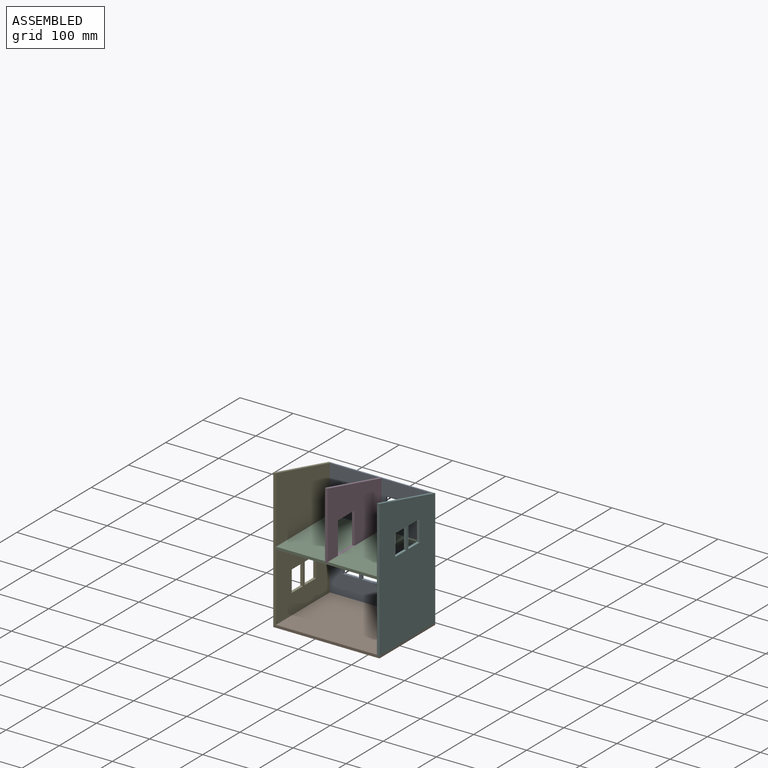
[diagram: assembled view]
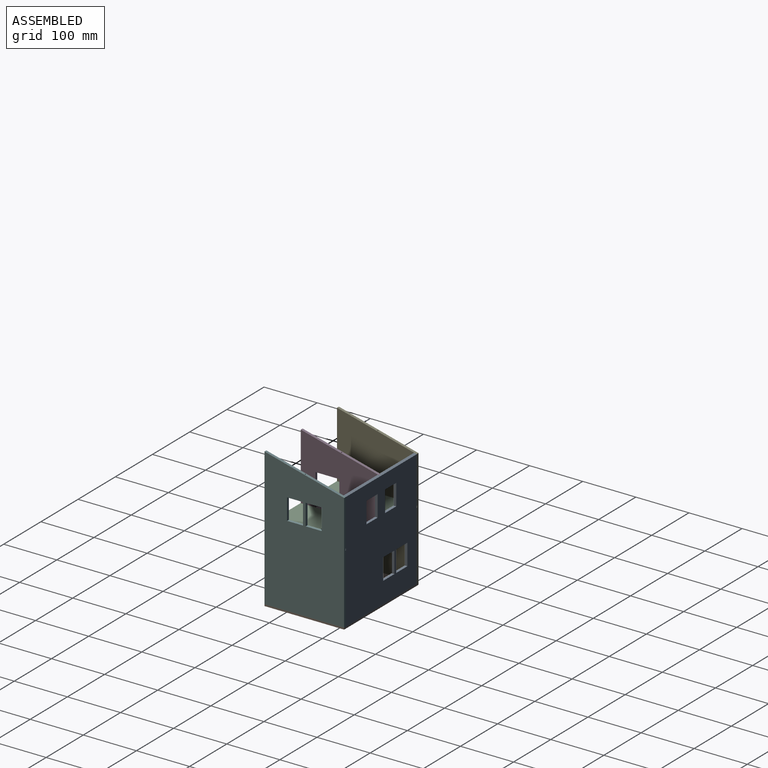
[diagram: assembled view, second angle]
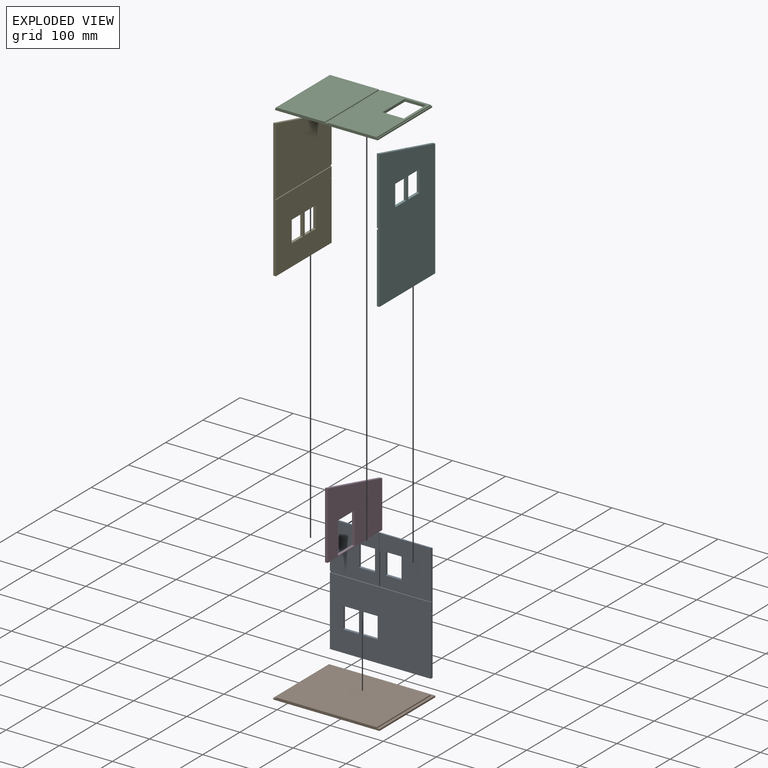
[diagram: exploded view]
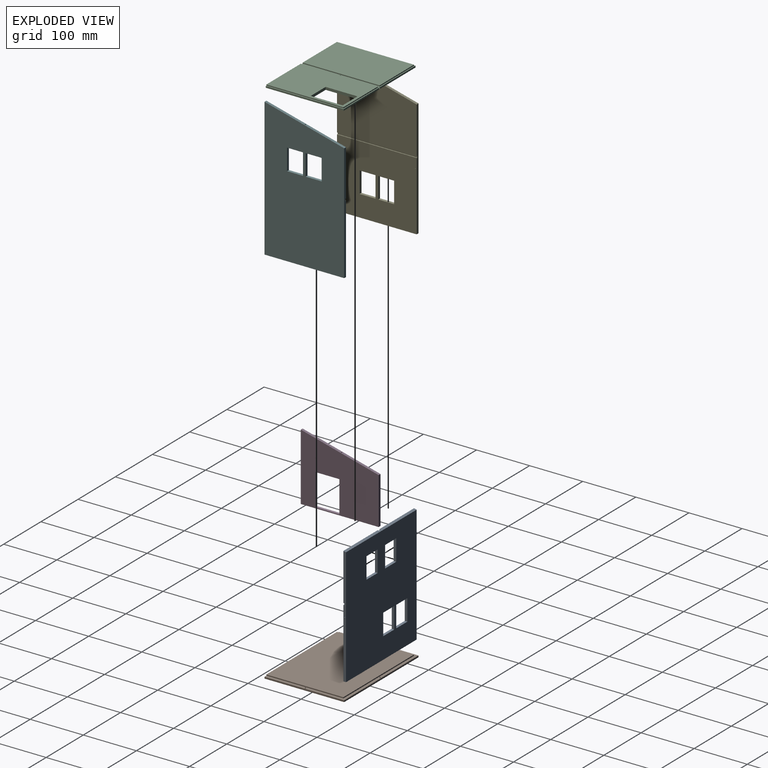
[diagram: exploded view, second angle]
ASSEMBLY  parts=6 mates=5
PART A: 38 faces, bbox 190x5x222.1 mm
  f0: plane 92.45x88.8mm, normal (0,-1,0), area 7009.6mm2, adj f7,f10,f16,f32,f33,f34,f35,f37
  f1: plane 92.45x1.7mm, normal (0,0,-1), area 157.2mm2, adj f2,f5,f17,f36
  f2: plane 92.45x88.8mm, normal (0,-1,0), area 7009.6mm2, adj f1,f5,f10,f20,f21,f22,f23,f36
  f3: plane 190x130mm, normal (0,-1,0), area 22300mm2, adj f5,f6,f7,f15,f24,f25,f26,f27
  f4: plane 220.97x190mm, normal (0,1,0), area 37184.3mm2, adj f5,f6,f7,f10,f20,f21,f22,f23
  f5: plane 222.1x5mm, normal (-1,0,0), area 1097.9mm2, adj f1,f2,f3,f4,f6,f10,f11,f15
  f6: plane 190x5mm, normal (0,0,-1), area 946.5mm2, adj f3,f4,f5,f7,f8
  f7: plane 222.1x5mm, normal (1,0,0), area 1097.9mm2, adj f0,f3,f4,f6,f10,f13,f15,f16
  f8: cylinder r=1.05mm len=2.1mm, axis (0,0,-1), area 13.2mm2, adj f6,f9
  f9: plane 2.1x2.1mm, normal (0,0,-1), area 3.5mm2, adj f8
  f10: plane 190x5mm, normal (0,0.22,0.98), area 965.1mm2, adj f0,f2,f4,f5,f7,f17,f36,f37
  f11: cylinder r=1.15mm len=2.3mm, axis (-1,0,0), area 14.5mm2, adj f5,f12
  f12: plane 2.3x2.3mm, normal (-1,0,0), area 4.2mm2, adj f11
  f13: cylinder r=1.15mm len=2.3mm, axis (1,0,0), area 14.5mm2, adj f7,f14
  f14: plane 2.3x2.3mm, normal (1,0,0), area 4.2mm2, adj f13
  f15: plane 190x1.7mm, normal (0,0,1), area 323mm2, adj f3,f5,f7,f17
  f16: plane 92.45x1.7mm, normal (0,0,-1), area 157.2mm2, adj f0,f7,f17,f37
  f17: plane 190x91.72mm, normal (0,-1,0), area 1074.8mm2, adj f1,f5,f7,f10,f15,f16,f18,f36
  f18: cylinder r=1mm len=2mm, axis (0,1,0), area 6.3mm2, adj f17,f19
  f19: plane 2x2mm, normal (0,-1,0), area 3.1mm2, adj f18
  f20: plane 30x5mm, normal (0,0,-1), area 150mm2, adj f2,f4,f21,f23
  f21: plane 40x5mm, normal (1,0,0), area 200mm2, adj f2,f4,f20,f22
  f22: plane 30x5mm, normal (0,0,1), area 150mm2, adj f2,f4,f21,f23
  f23: plane 40x5mm, normal (-1,0,0), area 200mm2, adj f2,f4,f20,f22
  f24: plane 30x5mm, normal (0,0,-1), area 150mm2, adj f3,f4,f25,f27
  f25: plane 40x5mm, normal (1,0,0), area 200mm2, adj f3,f4,f24,f26
  f26: plane 30x5mm, normal (0,0,1), area 150mm2, adj f3,f4,f25,f27
  f27: plane 40x5mm, normal (-1,0,0), area 200mm2, adj f3,f4,f24,f26
  f28: plane 30x5mm, normal (0,0,-1), area 150mm2, adj f3,f4,f29,f31
  f29: plane 40x5mm, normal (1,0,0), area 200mm2, adj f3,f4,f28,f30
  f30: plane 30x5mm, normal (0,0,1), area 150mm2, adj f3,f4,f29,f31
  f31: plane 40x5mm, normal (-1,0,0), area 200mm2, adj f3,f4,f28,f30
  f32: plane 30x5mm, normal (0,0,-1), area 150mm2, adj f0,f4,f33,f35
  f33: plane 40x5mm, normal (1,0,0), area 200mm2, adj f0,f4,f32,f34
  f34: plane 30x5mm, normal (0,0,1), area 150mm2, adj f0,f4,f33,f35
  f35: plane 40x5mm, normal (-1,0,0), area 200mm2, adj f0,f4,f32,f34
  f36: plane 88.8x1.7mm, normal (1,0,0), area 150.6mm2, adj f1,f2,f10,f17
  f37: plane 88.8x1.7mm, normal (-1,0,0), area 150.6mm2, adj f0,f10,f16,f17
PART B: 16 faces, bbox 200x150x5 mm
  f0: plane 200x3mm, normal (0,1,0), area 600mm2, adj f1,f2,f5,f9
  f1: plane 150x3mm, normal (-1,0,0), area 450mm2, adj f0,f3,f5,f9
  f2: plane 150x3mm, normal (1,0,0), area 450mm2, adj f0,f3,f5,f9
  f3: plane 200x5mm, normal (0,-1,0), area 979.6mm2, adj f1,f2,f4,f5,f6,f8,f9
  f4: plane 189.8x144.9mm, normal (0,0,1), area 27502mm2, adj f3,f6,f7,f8
  f5: plane 200x150mm, normal (0,0,-1), area 30000mm2, adj f0,f1,f2,f3
  f6: plane 144.9x2mm, normal (-1,0,0), area 289.8mm2, adj f3,f4,f7,f9
  f7: plane 189.8x2mm, normal (0,1,0), area 379.6mm2, adj f4,f6,f8,f9
  f8: plane 144.9x2mm, normal (1,0,0), area 289.8mm2, adj f3,f4,f7,f9
  f9: plane 200x150mm, normal (0,0,1), area 2488.6mm2, adj f0,f1,f2,f3,f6,f7,f8,f10
  f10: cylinder r=1mm len=2mm, axis (0,0,-1), area 6.3mm2, adj f9,f11
  f11: plane 2x2mm, normal (0,0,1), area 3.1mm2, adj f10
  f12: cylinder r=1mm len=2mm, axis (0,0,-1), area 6.3mm2, adj f9,f13
  f13: plane 2x2mm, normal (0,0,1), area 3.1mm2, adj f12
  f14: cylinder r=1mm len=2mm, axis (0,0,-1), area 6.3mm2, adj f9,f15
  f15: plane 2x2mm, normal (0,0,1), area 3.1mm2, adj f14
PART C: 22 faces, bbox 193x146.7x5 mm
  f0: plane 145x92.25mm, normal (0,0,1), area 13376.2mm2, adj f6,f7,f8,f17
  f1: plane 145x92.25mm, normal (0,0,1), area 10976.2mm2, adj f6,f8,f9,f13,f14,f15,f16,f18
  f2: plane 193x146.7mm, normal (0,0,-1), area 25913.1mm2, adj f3,f4,f5,f6,f13,f14,f15,f16
  f3: plane 193x3mm, normal (0,1,0), area 574.8mm2, adj f2,f4,f5,f10,f11
  f4: plane 146.7x3mm, normal (-1,0,0), area 440.1mm2, adj f2,f3,f6,f10
  f5: plane 146.7x3mm, normal (1,0,0), area 440.1mm2, adj f2,f3,f6,f10
  f6: plane 193x5mm, normal (0,-1,0), area 949.5mm2, adj f0,f1,f2,f4,f5,f7,f9,f10
  f7: plane 145x2mm, normal (-1,0,0), area 290mm2, adj f0,f6,f8,f10
  f8: plane 189.6x2mm, normal (0,1,0), area 370.5mm2, adj f0,f1,f7,f9,f10,f17,f18,f19
  f9: plane 145x2mm, normal (1,0,0), area 290mm2, adj f1,f6,f8,f10
  f10: plane 193x146.7mm, normal (0,0,1), area 821.1mm2, adj f3,f4,f5,f6,f7,f8,f9
  f11: cylinder r=1.15mm len=2.3mm, axis (0,1,0), area 14.5mm2, adj f3,f12
  f12: plane 2.3x2.3mm, normal (0,1,0), area 4.2mm2, adj f11
  f13: plane 40x5mm, normal (0,-1,0), area 200mm2, adj f1,f2,f14,f16
  f14: plane 60x5mm, normal (1,0,0), area 300mm2, adj f1,f2,f13,f15
  f15: plane 40x5mm, normal (0,1,0), area 200mm2, adj f1,f2,f14,f16
  f16: plane 60x5mm, normal (-1,0,0), area 300mm2, adj f1,f2,f13,f15
  f17: plane 145x1.7mm, normal (1,0,0), area 246.5mm2, adj f0,f6,f8,f19
  f18: plane 145x1.7mm, normal (-1,0,0), area 246.5mm2, adj f1,f6,f8,f19
  f19: plane 145x5.1mm, normal (0,0,1), area 736.4mm2, adj f6,f8,f17,f18,f20
  f20: cylinder r=1mm len=2mm, axis (0,0,-1), area 6.3mm2, adj f19,f21
  f21: plane 2x2mm, normal (0,0,1), area 3.1mm2, adj f20
PART D: 14 faces, bbox 5x146.7x126.5 mm
  f0: plane 146.68x126.54mm, normal (-1,0,0), area 13060.9mm2, adj f1,f3,f6,f9,f10,f11,f12,f13
  f1: plane 146.68x38.17mm, normal (0,0.25,0.97), area 754.7mm2, adj f0,f2,f3,f4,f13
  f2: plane 146.68x126.54mm, normal (1,0,0), area 13060.9mm2, adj f1,f3,f6,f9,f10,f11,f12,f13
  f3: plane 126.54x5mm, normal (0,-1,0), area 632.7mm2, adj f0,f1,f2,f6
  f4: cylinder r=1mm len=2.19mm, axis (0,-0.25,-0.97), area 6.3mm2, adj f1,f5
  f5: plane 2x1.94mm, normal (0,0.25,0.97), area 3.1mm2, adj f4
  f6: plane 146.68x5mm, normal (0,0,-1), area 729.2mm2, adj f0,f2,f3,f7,f13
  f7: cylinder r=1.15mm len=2.3mm, axis (0,0,-1), area 13.3mm2, adj f6,f8,f11,f12
  f8: plane 2.28x1mm, normal (0,0,-1), area 1.7mm2, adj f7,f12
  f9: plane 60x5mm, normal (0,1,0), area 300mm2, adj f0,f2,f10,f11
  f10: plane 45x5mm, normal (0,0,-1), area 225mm2, adj f0,f2,f9,f12
  f11: plane 45x5mm, normal (0,0,1), area 222.6mm2, adj f0,f2,f7,f9,f12
  f12: plane 60x5mm, normal (0,-1,0), area 299.3mm2, adj f0,f2,f7,f8,f10,f11
  f13: plane 88.36x5mm, normal (0,1,0), area 441.8mm2, adj f0,f1,f2,f6
PART E: 24 faces, bbox 6x150x260 mm
  f0: plane 150x130mm, normal (1,0,0), area 17096.9mm2, adj f3,f4,f5,f9,f11,f14,f15,f16
  f1: plane 260x150mm, normal (-1,0,0), area 33672.2mm2, adj f3,f4,f5,f6,f14,f15,f16,f17
  f2: plane 150x126.7mm, normal (1,0,0), area 16077.2mm2, adj f3,f5,f6,f12
  f3: plane 260x5mm, normal (0,-1,0), area 1294.4mm2, adj f0,f1,f2,f4,f6,f11,f12,f13
  f4: plane 150x5mm, normal (0,0,-1), area 746.5mm2, adj f0,f1,f3,f5,f7
  f5: plane 220.96x5mm, normal (0,1,0), area 1099.2mm2, adj f0,f1,f2,f4,f6,f11,f12,f13
  f6: plane 150x39.04mm, normal (0,0.25,0.97), area 771.8mm2, adj f1,f2,f3,f5,f22
  f7: cylinder r=1.05mm len=2.1mm, axis (0,0,-1), area 13.2mm2, adj f4,f8
  f8: plane 2.1x2.1mm, normal (0,0,-1), area 3.5mm2, adj f7
  f9: cylinder r=1mm len=2mm, axis (-1,0,0), area 6.3mm2, adj f0,f10
  f10: plane 2x2mm, normal (1,0,0), area 3.1mm2, adj f9
  f11: plane 150x1.7mm, normal (0,0,1), area 255mm2, adj f0,f3,f5,f13
  f12: plane 150x1.7mm, normal (0,0,-1), area 255mm2, adj f2,f3,f5,f13
  f13: plane 150x3.3mm, normal (1,0,0), area 495mm2, adj f3,f5,f11,f12
  f14: plane 30x5mm, normal (0,0,-1), area 150mm2, adj f0,f1,f15,f17
  f15: plane 40x5mm, normal (0,-1,0), area 200mm2, adj f0,f1,f14,f16
  f16: plane 30x5mm, normal (0,0,1), area 150mm2, adj f0,f1,f15,f17
  f17: plane 40x5mm, normal (0,1,0), area 200mm2, adj f0,f1,f14,f16
  f18: plane 30x5mm, normal (0,0,-1), area 150mm2, adj f0,f1,f19,f21
  f19: plane 40x5mm, normal (0,-1,0), area 200mm2, adj f0,f1,f18,f20
  f20: plane 30x5mm, normal (0,0,1), area 150mm2, adj f0,f1,f19,f21
  f21: plane 40x5mm, normal (0,1,0), area 200mm2, adj f0,f1,f18,f20
  f22: cylinder r=1mm len=2.19mm, axis (0,-0.25,-0.97), area 6.3mm2, adj f6,f23
  f23: plane 2x1.94mm, normal (0,0.25,0.97), area 3.1mm2, adj f22
PART F: 24 faces, bbox 6x150x260 mm
  f0: plane 260x150mm, normal (1,0,0), area 33672.2mm2, adj f3,f4,f5,f6,f14,f15,f16,f17
  f1: plane 150x126.7mm, normal (-1,0,0), area 13677.2mm2, adj f3,f5,f6,f12,f14,f15,f16,f17
  f2: plane 150x130mm, normal (-1,0,0), area 19496.9mm2, adj f3,f4,f5,f9,f11
  f3: plane 260x5mm, normal (0,-1,0), area 1294.4mm2, adj f0,f1,f2,f4,f6,f11,f12,f13
  f4: plane 150x5mm, normal (0,0,-1), area 746.5mm2, adj f0,f2,f3,f5,f7
  f5: plane 220.96x5mm, normal (0,1,0), area 1099.2mm2, adj f0,f1,f2,f4,f6,f11,f12,f13
  f6: plane 150x39.04mm, normal (0,0.25,0.97), area 771.8mm2, adj f0,f1,f3,f5,f22
  f7: cylinder r=1.05mm len=2.1mm, axis (0,0,-1), area 13.2mm2, adj f4,f8
  f8: plane 2.1x2.1mm, normal (0,0,-1), area 3.5mm2, adj f7
  f9: cylinder r=1mm len=2mm, axis (1,0,0), area 6.3mm2, adj f2,f10
  f10: plane 2x2mm, normal (-1,0,0), area 3.1mm2, adj f9
  f11: plane 150x1.7mm, normal (0,0,1), area 255mm2, adj f2,f3,f5,f13
  f12: plane 150x1.7mm, normal (0,0,-1), area 255mm2, adj f1,f3,f5,f13
  f13: plane 150x3.3mm, normal (-1,0,0), area 495mm2, adj f3,f5,f11,f12
  f14: plane 30x5mm, normal (0,0,-1), area 150mm2, adj f0,f1,f15,f17
  f15: plane 40x5mm, normal (0,1,0), area 200mm2, adj f0,f1,f14,f16
  f16: plane 30x5mm, normal (0,0,1), area 150mm2, adj f0,f1,f15,f17
  f17: plane 40x5mm, normal (0,-1,0), area 200mm2, adj f0,f1,f14,f16
  f18: plane 30x5mm, normal (0,0,-1), area 150mm2, adj f0,f1,f19,f21
  f19: plane 40x5mm, normal (0,1,0), area 200mm2, adj f0,f1,f18,f20
  f20: plane 30x5mm, normal (0,0,1), area 150mm2, adj f0,f1,f19,f21
  f21: plane 40x5mm, normal (0,-1,0), area 200mm2, adj f0,f1,f18,f20
  f22: cylinder r=1mm len=2.19mm, axis (0,-0.25,-0.97), area 6.3mm2, adj f6,f23
  f23: plane 2x1.94mm, normal (0,0.25,0.97), area 3.1mm2, adj f22
PLACE A t=(-114.4,67.54,12.55)mm
PLACE B t=(-21.69,-32.64,9.6)mm
PLACE C t=(-18.19,-32.64,142.7)mm
PLACE D t=(-21.95,-82.46,12.54)mm
PLACE E t=(-119.4,-82.46,12.6)mm
PLACE F t=(75.6,-82.46,12.6)mm
MATE pin_slot D.f7 <-> C.f20  axis (0,0,-1) through (-19.45,-9.96,146)mm
MATE pin_slot E.f7 <-> B.f10  axis (0,0,-1) through (-116.9,-7.46,12.6)mm
MATE pin_slot C.f11 <-> A.f18  axis (0,1,0) through (-19.4,64.24,144.2)mm
MATE cylindrical A.f8 <-> B.f14  axis (0,0,-1) through (-19.4,65.04,12.55)mm
MATE pin_slot F.f7 <-> B.f12  axis (0,0,-1) through (78.1,-7.46,12.6)mm
